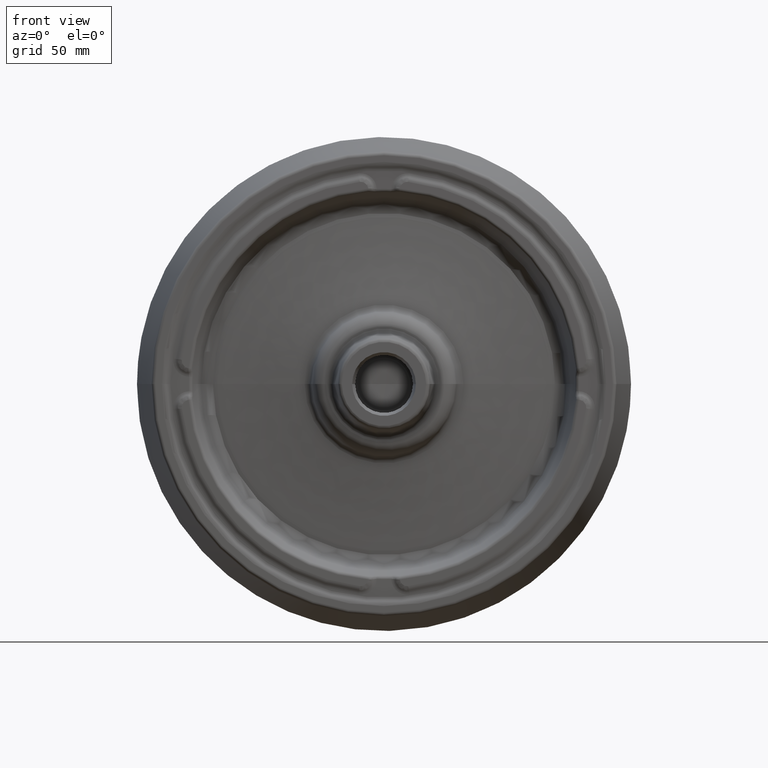
[diagram: clean part render]
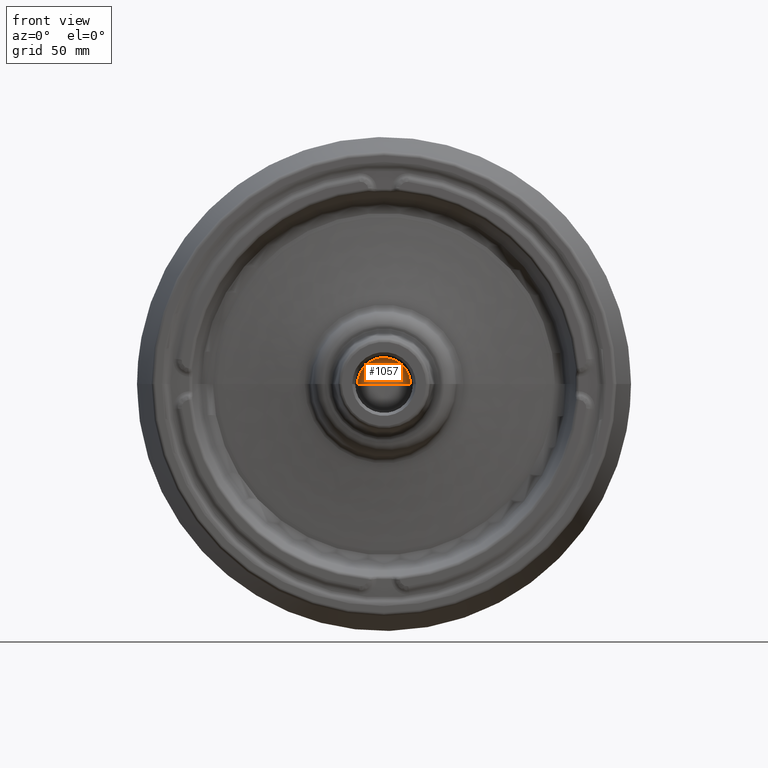
[diagram: same view with one face highlighted and labeled with its STEP entity id]
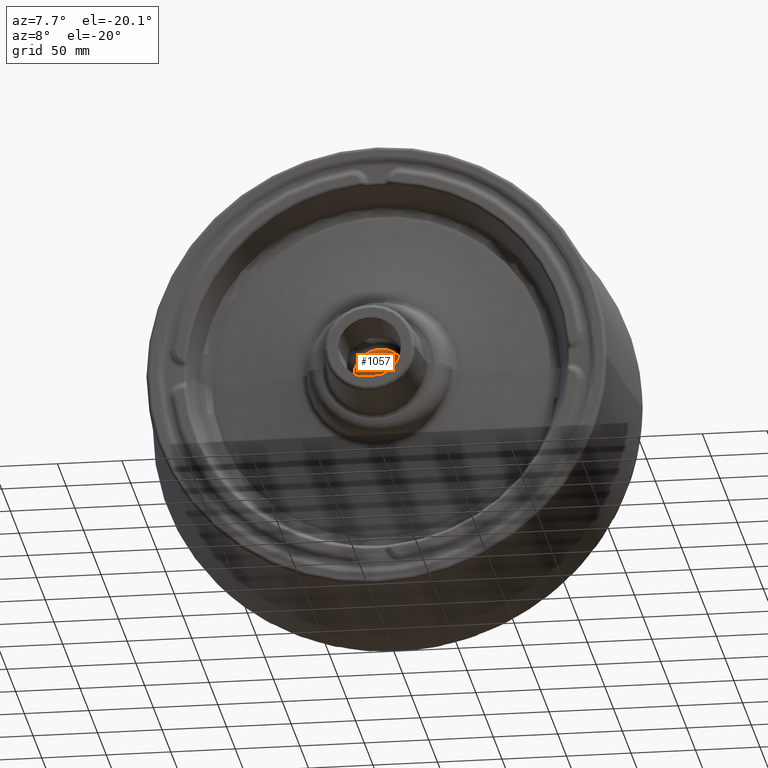
[diagram: same view with one face highlighted and labeled with its STEP entity id]
A machine part, front view. The second image highlights one B-rep face of the part: STEP entity #1057.
A second angle (auxiliary view) of the same face is appended — the face is thin or edge-on in the first view.
In plain terms, the highlighted spherical surface has radius 169.56 mm.
Its self-contained STEP definition (entity closure, byte-faithful):
#142=SPHERICAL_SURFACE('',#6847,169.5596004384);
#1057=ADVANCED_FACE('',(#1621),#142,.F.);
#1621=FACE_OUTER_BOUND('',#2046,.T.);
#2046=EDGE_LOOP('',(#4226,#4227,#4228,#4229));
#4226=ORIENTED_EDGE('',*,*,#5544,.T.);
#4227=ORIENTED_EDGE('',*,*,#5626,.T.);
#4228=ORIENTED_EDGE('',*,*,#5773,.T.);
#4229=ORIENTED_EDGE('',*,*,#5774,.F.);
#4729=VERTEX_POINT('',#13988);
#4730=VERTEX_POINT('',#13990);
#4731=VERTEX_POINT('',#13992);
#4854=VERTEX_POINT('',#16646);
#5544=EDGE_CURVE('',#4730,#4729,#6140,.T.);
#5626=EDGE_CURVE('',#4729,#4731,#6163,.T.);
#5773=EDGE_CURVE('',#4731,#4854,#6207,.T.);
#5774=EDGE_CURVE('',#4730,#4854,#6208,.T.);
#6140=CIRCLE('',#6729,20.30589038086);
#6163=CIRCLE('',#6766,20.30589038086);
#6207=CIRCLE('',#6845,169.5596004384);
#6208=CIRCLE('',#6846,169.5596004384);
#6729=AXIS2_PLACEMENT_3D('',#13989,#7969,#7970);
#6766=AXIS2_PLACEMENT_3D('',#14730,#8055,#8056);
#6845=AXIS2_PLACEMENT_3D('',#16645,#8225,#8226);
#6846=AXIS2_PLACEMENT_3D('',#16647,#8227,#8228);
#6847=AXIS2_PLACEMENT_3D('',#16648,#8229,#8230);
#7969=DIRECTION('',(0.,-1.,0.));
#7970=DIRECTION('',(1.,0.,0.));
#8055=DIRECTION('',(0.,-1.,0.));
#8056=DIRECTION('',(0.500020756023979,0.,0.866013419956763));
#8225=DIRECTION('',(0.,0.,-1.));
#8226=DIRECTION('',(0.,1.,0.));
#8227=DIRECTION('',(0.,0.,1.));
#8228=DIRECTION('',(0.,1.,0.));
#8229=DIRECTION('',(6.12323399573677E-017,-1.,0.));
#8230=DIRECTION('',(1.,0.,0.));
#13988=CARTESIAN_POINT('',(10.15336665998,21.2797262701,17.585173574));
#13989=CARTESIAN_POINT('',(0.,21.2797262701,0.));
#13990=CARTESIAN_POINT('',(20.30589038086,21.2797262701,0.));
#13992=CARTESIAN_POINT('',(-20.30589038086,21.2797262701,0.));
#14730=CARTESIAN_POINT('',(0.,21.2797262701,0.));
#16645=CARTESIAN_POINT('',(-6.33973687013E-014,-147.0596004384,0.));
#16646=CARTESIAN_POINT('',(0.,22.5,0.));
#16647=CARTESIAN_POINT('',(0.,-147.0596004384,0.));
#16648=CARTESIAN_POINT('',(-3.169868435076E-014,-147.0596004384,0.));